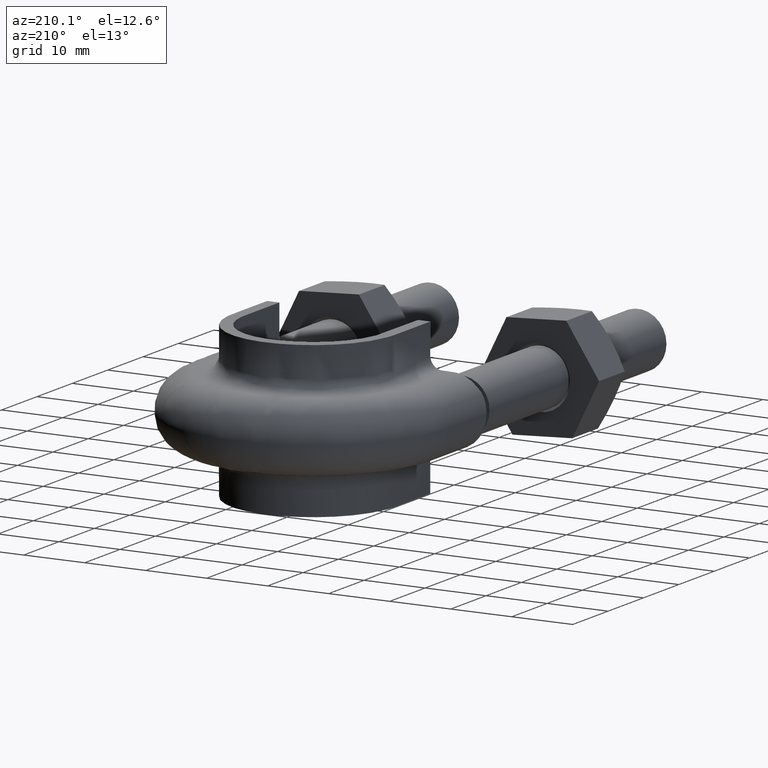
[diagram: clean part render]
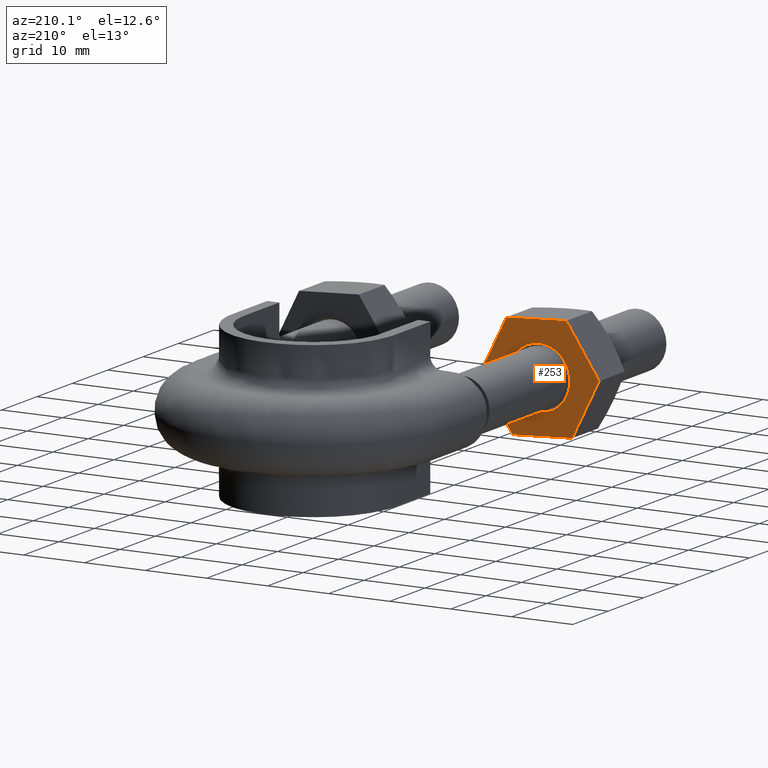
[diagram: same view with one face highlighted and labeled with its STEP entity id]
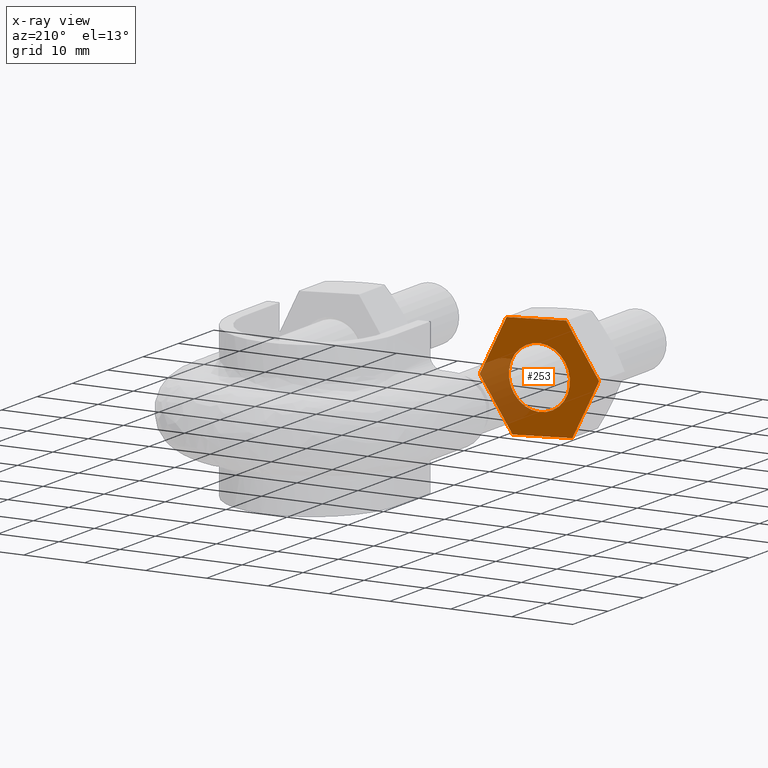
[diagram: x-ray of the same camera — body ghosted, the highlighted face saturated]
A machine part, auxiliary view. The second image highlights one B-rep face of the part: STEP entity #253.
The next image is the same camera in x-ray: the body ghosted, the highlighted face saturated — about 22% of this face is hidden behind the body in this view.
In plain terms, the highlighted planar face has unit normal (-0, -1, 0).
Its self-contained STEP definition (entity closure, byte-faithful):
#253 = ADVANCED_FACE( '', ( #375, #376 ), #377, .F. );
#375 = FACE_BOUND( '', #1454, .T. );
#376 = FACE_OUTER_BOUND( '', #1455, .T. );
#377 = PLANE( '', #1456 );
#1454 = EDGE_LOOP( '', ( #1773 ) );
#1455 = EDGE_LOOP( '', ( #1774, #1775, #1776, #1777, #1778, #1779, #1780, #1781, #1782, #1783, #1784, #1785 ) );
#1456 = AXIS2_PLACEMENT_3D( '', #1786, #1787, #1788 );
#1773 = ORIENTED_EDGE( '', *, *, #2151, .F. );
#1774 = ORIENTED_EDGE( '', *, *, #2152, .T. );
#1775 = ORIENTED_EDGE( '', *, *, #2153, .T. );
#1776 = ORIENTED_EDGE( '', *, *, #2154, .T. );
#1777 = ORIENTED_EDGE( '', *, *, #2147, .T. );
#1778 = ORIENTED_EDGE( '', *, *, #2155, .T. );
#1779 = ORIENTED_EDGE( '', *, *, #2156, .T. );
#1780 = ORIENTED_EDGE( '', *, *, #2157, .T. );
#1781 = ORIENTED_EDGE( '', *, *, #2158, .T. );
#1782 = ORIENTED_EDGE( '', *, *, #2159, .T. );
#1783 = ORIENTED_EDGE( '', *, *, #2160, .T. );
#1784 = ORIENTED_EDGE( '', *, *, #2161, .T. );
#1785 = ORIENTED_EDGE( '', *, *, #2162, .T. );
#1786 = CARTESIAN_POINT( '', ( -11.6136923223573, 28.0000000000045, 8.18704400878405 ) );
#1787 = DIRECTION( '', ( -2.44921270764557E-016, -1.00000000000000, 3.06151588455535E-016 ) );
#1788 = DIRECTION( '', ( 0.835412653957557, -3.72878354475236E-016, -0.549623232412523 ) );
#2147 = EDGE_CURVE( '', #2340, #2338, #2341, .T. );
#2151 = EDGE_CURVE( '', #2346, #2346, #2347, .T. );
#2152 = EDGE_CURVE( '', #2348, #2349, #2350, .T. );
#2153 = EDGE_CURVE( '', #2349, #2351, #2352, .T. );
#2154 = EDGE_CURVE( '', #2351, #2340, #2353, .T. );
#2155 = EDGE_CURVE( '', #2338, #2354, #2355, .T. );
#2156 = EDGE_CURVE( '', #2354, #2356, #2357, .T. );
#2157 = EDGE_CURVE( '', #2356, #2358, #2359, .T. );
#2158 = EDGE_CURVE( '', #2358, #2360, #2361, .T. );
#2159 = EDGE_CURVE( '', #2360, #2362, #2363, .T. );
#2160 = EDGE_CURVE( '', #2362, #2364, #2365, .T. );
#2161 = EDGE_CURVE( '', #2364, #2366, #2367, .T. );
#2162 = EDGE_CURVE( '', #2366, #2348, #2368, .T. );
#2338 = VERTEX_POINT( '', #2803 );
#2340 = VERTEX_POINT( '', #2806 );
#2341 = LINE( '', #2807, #2808 );
#2346 = VERTEX_POINT( '', #2821 );
#2347 = CIRCLE( '', #2822, 5.00000000000000 );
#2348 = VERTEX_POINT( '', #2823 );
#2349 = VERTEX_POINT( '', #2824 );
#2350 = CIRCLE( '', #2825, 9.80000000000000 );
#2351 = VERTEX_POINT( '', #2826 );
#2352 = LINE( '', #2827, #2828 );
#2353 = CIRCLE( '', #2829, 9.80000000000000 );
#2354 = VERTEX_POINT( '', #2830 );
#2355 = CIRCLE( '', #2831, 9.80000000000000 );
#2356 = VERTEX_POINT( '', #2832 );
#2357 = LINE( '', #2833, #2834 );
#2358 = VERTEX_POINT( '', #2835 );
#2359 = CIRCLE( '', #2836, 9.80000000000000 );
#2360 = VERTEX_POINT( '', #2837 );
#2361 = LINE( '', #2838, #2839 );
#2362 = VERTEX_POINT( '', #2840 );
#2363 = CIRCLE( '', #2841, 9.80000000000000 );
#2364 = VERTEX_POINT( '', #2842 );
#2365 = LINE( '', #2843, #2844 );
#2366 = VERTEX_POINT( '', #2845 );
#2367 = CIRCLE( '', #2846, 9.80000000000000 );
#2368 = LINE( '', #2847, #2848 );
#2803 = CARTESIAN_POINT( '', ( -22.3646000879252, 28.0000000000045, -8.20128440530097 ) );
#2806 = CARTESIAN_POINT( '', ( -12.6261829436847, 28.0000000000045, -8.76981894669929 ) );
#2807 = CARTESIAN_POINT( '', ( -12.6037205496402, 28.0000000000045, -8.77113031452300 ) );
#2808 = VECTOR( '', #3200, 1000.00000000000 );
#2821 = CARTESIAN_POINT( '', ( -21.1770632697878, 28.0000000000045, 2.74811616206261 ) );
#2822 = AXIS2_PLACEMENT_3D( '', #3205, #3206, #3207 );
#2823 = CARTESIAN_POINT( '', ( -7.21517931738559, 28.0000000000045, -0.545237754637004 ) );
#2824 = CARTESIAN_POINT( '', ( -7.21820547741069, 28.0000000000045, -0.597072791074953 ) );
#2825 = AXIS2_PLACEMENT_3D( '', #3208, #3209, #3210 );
#2826 = CARTESIAN_POINT( '', ( -12.5797794053108, 28.0000000000045, -8.74652215993796 ) );
#2827 = CARTESIAN_POINT( '', ( -4.51268476371802, 28.0000000000045, 3.51524653327760 ) );
#2828 = VECTOR( '', #3211, 1000.00000000000 );
#2829 = AXIS2_PLACEMENT_3D( '', #3212, #3213, #3214 );
#2830 = CARTESIAN_POINT( '', ( -22.4079774662740, 28.0000000000045, -8.17274615562435 ) );
#2831 = AXIS2_PLACEMENT_3D( '', #3215, #3216, #3217 );
#2832 = CARTESIAN_POINT( '', ( -26.7848206826144, 28.0000000000045, 0.545237754636984 ) );
#2833 = CARTESIAN_POINT( '', ( -26.7949162017876, 28.0000000000045, 0.565346442421218 ) );
#2834 = VECTOR( '', #3218, 1000.00000000000 );
#2835 = CARTESIAN_POINT( '', ( -26.7817945225893, 28.0000000000045, 0.597072791074936 ) );
#2836 = AXIS2_PLACEMENT_3D( '', #3219, #3220, #3221 );
#2837 = CARTESIAN_POINT( '', ( -21.4202205946892, 28.0000000000045, 8.74652215993795 ) );
#2838 = CARTESIAN_POINT( '', ( -18.7146998809965, 28.0000000000045, 12.8588414842905 ) );
#2839 = VECTOR( '', #3222, 1000.00000000000 );
#2840 = CARTESIAN_POINT( '', ( -21.3738170563153, 28.0000000000045, 8.76981894669927 ) );
#2841 = AXIS2_PLACEMENT_3D( '', #3223, #3224, #3225 );
#2842 = CARTESIAN_POINT( '', ( -11.6353999120748, 28.0000000000045, 8.20128440530095 ) );
#2843 = CARTESIAN_POINT( '', ( -11.6129375180302, 28.0000000000045, 8.19997303747724 ) );
#2844 = VECTOR( '', #3226, 1000.00000000000 );
#2845 = CARTESIAN_POINT( '', ( -11.5920225337260, 28.0000000000045, 8.17274615562433 ) );
#2846 = AXIS2_PLACEMENT_3D( '', #3227, #3228, #3229 );
#2847 = CARTESIAN_POINT( '', ( -11.6021180528992, 28.0000000000045, 8.19285484340856 ) );
#2848 = VECTOR( '', #3230, 1000.00000000000 );
#3200 = DIRECTION( '', ( -0.998300197176485, 2.62347882246512E-016, 0.0582813548005854 ) );
#3205 = CARTESIAN_POINT( '', ( -17.0000000000000, 28.0000000000045, -8.71307420744672E-015 ) );
#3206 = DIRECTION( '', ( 2.44921270764557E-016, 1.00000000000000, -3.06151588455535E-016 ) );
#3207 = DIRECTION( '', ( -0.835412653957557, 3.72878354475236E-016, 0.549623232412523 ) );
#3208 = CARTESIAN_POINT( '', ( -17.0000000000000, 28.0000000000045, -8.71307420744672E-015 ) );
#3209 = DIRECTION( '', ( 2.44921270764557E-016, 1.00000000000000, -3.06151588455535E-016 ) );
#3210 = DIRECTION( '', ( -0.835412653957557, 3.72878354475236E-016, 0.549623232412524 ) );
#3211 = DIRECTION( '', ( -0.549623232412523, -1.21148490500762E-016, -0.835412653957557 ) );
#3212 = CARTESIAN_POINT( '', ( -17.0000000000000, 28.0000000000045, -8.71307420744672E-015 ) );
#3213 = DIRECTION( '', ( 2.44921270764557E-016, 1.00000000000000, -3.06151588455535E-016 ) );
#3214 = DIRECTION( '', ( -0.835412653957557, 3.72878354475236E-016, 0.549623232412524 ) );
#3215 = CARTESIAN_POINT( '', ( -17.0000000000000, 28.0000000000045, -8.71307420744672E-015 ) );
#3216 = DIRECTION( '', ( 2.44921270764557E-016, 1.00000000000000, -3.06151588455535E-016 ) );
#3217 = DIRECTION( '', ( -0.835412653957557, 3.72878354475236E-016, 0.549623232412524 ) );
#3218 = DIRECTION( '', ( -0.448676964763961, 3.83496372747274E-016, 0.893694008758143 ) );
#3219 = CARTESIAN_POINT( '', ( -17.0000000000000, 28.0000000000045, -8.71307420744672E-015 ) );
#3220 = DIRECTION( '', ( 2.44921270764557E-016, 1.00000000000000, -3.06151588455535E-016 ) );
#3221 = DIRECTION( '', ( -0.835412653957557, 3.72878354475236E-016, 0.549623232412524 ) );
#3222 = DIRECTION( '', ( 0.549623232412523, 1.21148490500762E-016, 0.835412653957557 ) );
#3223 = CARTESIAN_POINT( '', ( -17.0000000000000, 28.0000000000045, -8.71307420744672E-015 ) );
#3224 = DIRECTION( '', ( 2.44921270764557E-016, 1.00000000000000, -3.06151588455535E-016 ) );
#3225 = DIRECTION( '', ( -0.835412653957557, 3.72878354475236E-016, 0.549623232412524 ) );
#3226 = DIRECTION( '', ( 0.998300197176485, -2.62347882246512E-016, -0.0582813548005854 ) );
#3227 = CARTESIAN_POINT( '', ( -17.0000000000000, 28.0000000000045, -8.71307420744672E-015 ) );
#3228 = DIRECTION( '', ( 2.44921270764557E-016, 1.00000000000000, -3.06151588455535E-016 ) );
#3229 = DIRECTION( '', ( -0.835412653957557, 3.72878354475236E-016, 0.549623232412524 ) );
#3230 = DIRECTION( '', ( 0.448676964763961, -3.83496372747274E-016, -0.893694008758143 ) );